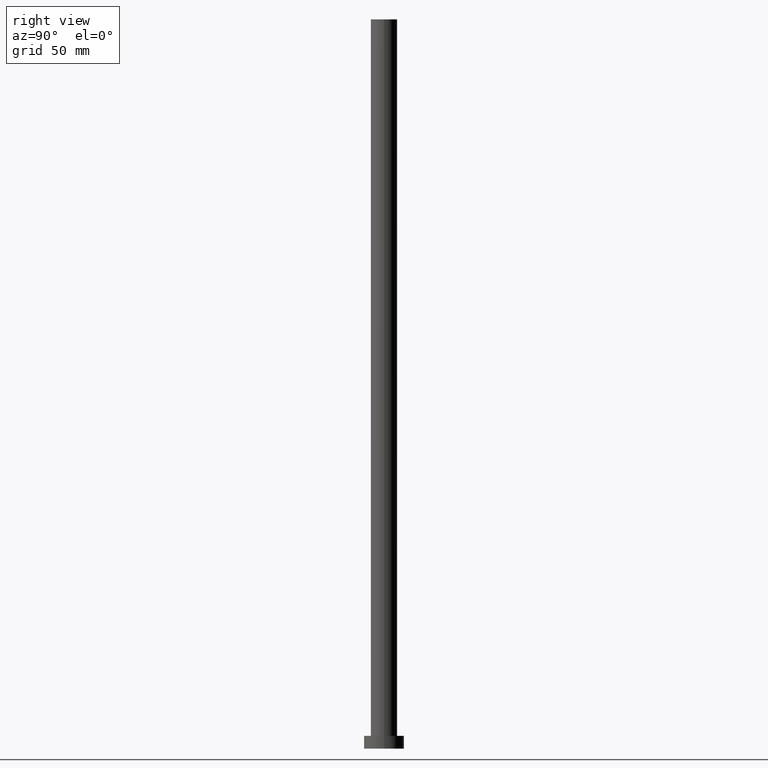
[diagram: clean part render]
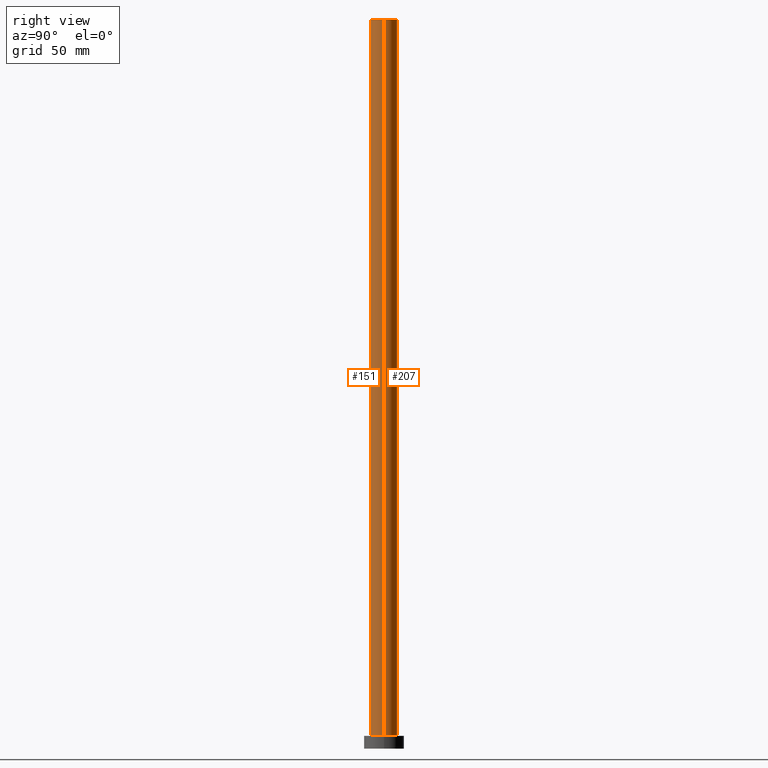
[diagram: same view with one multi-face feature highlighted, each face labeled with its STEP entity id]
A machine part, right view. The highlighted faces form ONE feature: a constant-radius fillet chain: 2 tangent blend faces with common blend radius 7.25 mm. The faces share edges in the B-rep.
Their STEP definitions:
[1] entity #207 (Cylinder):
#2 = DIRECTION ( 'NONE',  ( -0.000000000000000000, -0.000000000000000000, -1.000000000000000000 ) ) ;
#10 = CARTESIAN_POINT ( 'NONE',  ( 0.000000000000000000, 0.000000000000000000, 7.000000000000000000 ) ) ;
#14 = CARTESIAN_POINT ( 'NONE',  ( 0.000000000000000000, 0.000000000000000000, 400.0000000000000000 ) ) ;
#32 = AXIS2_PLACEMENT_3D ( 'NONE', #14, #122, #176 ) ;
#35 = VECTOR ( 'NONE', #68, 1000.000000000000000 ) ;
#39 = DIRECTION ( 'NONE',  ( -0.000000000000000000, -0.000000000000000000, -1.000000000000000000 ) ) ;
#45 = LINE ( 'NONE', #225, #35 ) ;
#48 = ORIENTED_EDGE ( 'NONE', *, *, #148, .T. ) ;
#50 = CARTESIAN_POINT ( 'NONE',  ( -7.250000000000000000, 0.000000000000000000, 7.000000000000000000 ) ) ;
#58 = CARTESIAN_POINT ( 'NONE',  ( 7.250000000000000000, 8.878689293818310074E-16, 400.0000000000000000 ) ) ;
#59 = EDGE_LOOP ( 'NONE', ( #233, #70, #48, #105 ) ) ;
#60 = FACE_OUTER_BOUND ( 'NONE', #59, .T. ) ;
#68 = DIRECTION ( 'NONE',  ( -0.000000000000000000, -0.000000000000000000, -1.000000000000000000 ) ) ;
#70 = ORIENTED_EDGE ( 'NONE', *, *, #215, .T. ) ;
#71 = VERTEX_POINT ( 'NONE', #150 ) ;
#87 = EDGE_CURVE ( 'NONE', #71, #90, #45, .T. ) ;
#90 = VERTEX_POINT ( 'NONE', #50 ) ;
#94 = CARTESIAN_POINT ( 'NONE',  ( 7.250000000000000000, 8.878689293818310074E-16, 400.0000000000000000 ) ) ;
#105 = ORIENTED_EDGE ( 'NONE', *, *, #87, .F. ) ;
#109 = CIRCLE ( 'NONE', #32, 7.250000000000000000 ) ;
#122 = DIRECTION ( 'NONE',  ( 0.000000000000000000, 0.000000000000000000, 1.000000000000000000 ) ) ;
#126 = AXIS2_PLACEMENT_3D ( 'NONE', #216, #39, #157 ) ;
#132 = DIRECTION ( 'NONE',  ( 1.000000000000000000, 0.000000000000000000, 0.000000000000000000 ) ) ;
#139 = CARTESIAN_POINT ( 'NONE',  ( 7.250000000000000000, 8.878689293818310074E-16, 7.000000000000000000 ) ) ;
#148 = EDGE_CURVE ( 'NONE', #218, #90, #178, .T. ) ;
#150 = CARTESIAN_POINT ( 'NONE',  ( -7.250000000000000000, 0.000000000000000000, 400.0000000000000000 ) ) ;
#157 = DIRECTION ( 'NONE',  ( -1.000000000000000000, 0.000000000000000000, 0.000000000000000000 ) ) ;
#159 = CYLINDRICAL_SURFACE ( 'NONE', #126, 7.250000000000000000 ) ;
#166 = VERTEX_POINT ( 'NONE', #94 ) ;
#167 = VECTOR ( 'NONE', #2, 1000.000000000000000 ) ;
#174 = AXIS2_PLACEMENT_3D ( 'NONE', #10, #206, #132 ) ;
#176 = DIRECTION ( 'NONE',  ( 1.000000000000000000, 0.000000000000000000, 0.000000000000000000 ) ) ;
#178 = CIRCLE ( 'NONE', #174, 7.250000000000000000 ) ;
#206 = DIRECTION ( 'NONE',  ( 0.000000000000000000, 0.000000000000000000, 1.000000000000000000 ) ) ;
#207 = ADVANCED_FACE ( 'NONE', ( #60 ), #159, .T. ) ;
#215 = EDGE_CURVE ( 'NONE', #166, #218, #234, .T. ) ;
#216 = CARTESIAN_POINT ( 'NONE',  ( 0.000000000000000000, 0.000000000000000000, 400.0000000000000000 ) ) ;
#218 = VERTEX_POINT ( 'NONE', #139 ) ;
#225 = CARTESIAN_POINT ( 'NONE',  ( -7.250000000000000000, 0.000000000000000000, 400.0000000000000000 ) ) ;
#233 = ORIENTED_EDGE ( 'NONE', *, *, #250, .F. ) ;
#234 = LINE ( 'NONE', #58, #167 ) ;
#250 = EDGE_CURVE ( 'NONE', #166, #71, #109, .T. ) ;
[2] entity #151 (Cylinder):
#2 = DIRECTION ( 'NONE',  ( -0.000000000000000000, -0.000000000000000000, -1.000000000000000000 ) ) ;
#12 = AXIS2_PLACEMENT_3D ( 'NONE', #143, #100, #137 ) ;
#15 = ORIENTED_EDGE ( 'NONE', *, *, #232, .T. ) ;
#35 = VECTOR ( 'NONE', #68, 1000.000000000000000 ) ;
#40 = CARTESIAN_POINT ( 'NONE',  ( 0.000000000000000000, 0.000000000000000000, 7.000000000000000000 ) ) ;
#44 = CIRCLE ( 'NONE', #211, 7.250000000000000000 ) ;
#45 = LINE ( 'NONE', #225, #35 ) ;
#50 = CARTESIAN_POINT ( 'NONE',  ( -7.250000000000000000, 0.000000000000000000, 7.000000000000000000 ) ) ;
#58 = CARTESIAN_POINT ( 'NONE',  ( 7.250000000000000000, 8.878689293818310074E-16, 400.0000000000000000 ) ) ;
#68 = DIRECTION ( 'NONE',  ( -0.000000000000000000, -0.000000000000000000, -1.000000000000000000 ) ) ;
#71 = VERTEX_POINT ( 'NONE', #150 ) ;
#74 = AXIS2_PLACEMENT_3D ( 'NONE', #244, #114, #190 ) ;
#83 = ORIENTED_EDGE ( 'NONE', *, *, #215, .F. ) ;
#85 = ORIENTED_EDGE ( 'NONE', *, *, #247, .F. ) ;
#87 = EDGE_CURVE ( 'NONE', #71, #90, #45, .T. ) ;
#90 = VERTEX_POINT ( 'NONE', #50 ) ;
#94 = CARTESIAN_POINT ( 'NONE',  ( 7.250000000000000000, 8.878689293818310074E-16, 400.0000000000000000 ) ) ;
#99 = DIRECTION ( 'NONE',  ( 1.000000000000000000, 0.000000000000000000, 0.000000000000000000 ) ) ;
#100 = DIRECTION ( 'NONE',  ( 0.000000000000000000, 0.000000000000000000, 1.000000000000000000 ) ) ;
#101 = DIRECTION ( 'NONE',  ( 0.000000000000000000, 0.000000000000000000, 1.000000000000000000 ) ) ;
#110 = EDGE_LOOP ( 'NONE', ( #83, #85, #214, #15 ) ) ;
#114 = DIRECTION ( 'NONE',  ( -0.000000000000000000, -0.000000000000000000, -1.000000000000000000 ) ) ;
#116 = FACE_OUTER_BOUND ( 'NONE', #110, .T. ) ;
#137 = DIRECTION ( 'NONE',  ( 1.000000000000000000, 0.000000000000000000, 0.000000000000000000 ) ) ;
#139 = CARTESIAN_POINT ( 'NONE',  ( 7.250000000000000000, 8.878689293818310074E-16, 7.000000000000000000 ) ) ;
#143 = CARTESIAN_POINT ( 'NONE',  ( 0.000000000000000000, 0.000000000000000000, 400.0000000000000000 ) ) ;
#150 = CARTESIAN_POINT ( 'NONE',  ( -7.250000000000000000, 0.000000000000000000, 400.0000000000000000 ) ) ;
#151 = ADVANCED_FACE ( 'NONE', ( #116 ), #228, .T. ) ;
#166 = VERTEX_POINT ( 'NONE', #94 ) ;
#167 = VECTOR ( 'NONE', #2, 1000.000000000000000 ) ;
#190 = DIRECTION ( 'NONE',  ( -1.000000000000000000, 0.000000000000000000, 0.000000000000000000 ) ) ;
#211 = AXIS2_PLACEMENT_3D ( 'NONE', #40, #101, #99 ) ;
#214 = ORIENTED_EDGE ( 'NONE', *, *, #87, .T. ) ;
#215 = EDGE_CURVE ( 'NONE', #166, #218, #234, .T. ) ;
#217 = CIRCLE ( 'NONE', #12, 7.250000000000000000 ) ;
#218 = VERTEX_POINT ( 'NONE', #139 ) ;
#225 = CARTESIAN_POINT ( 'NONE',  ( -7.250000000000000000, 0.000000000000000000, 400.0000000000000000 ) ) ;
#228 = CYLINDRICAL_SURFACE ( 'NONE', #74, 7.250000000000000000 ) ;
#232 = EDGE_CURVE ( 'NONE', #90, #218, #44, .T. ) ;
#234 = LINE ( 'NONE', #58, #167 ) ;
#244 = CARTESIAN_POINT ( 'NONE',  ( 0.000000000000000000, 0.000000000000000000, 400.0000000000000000 ) ) ;
#247 = EDGE_CURVE ( 'NONE', #71, #166, #217, .T. ) ;